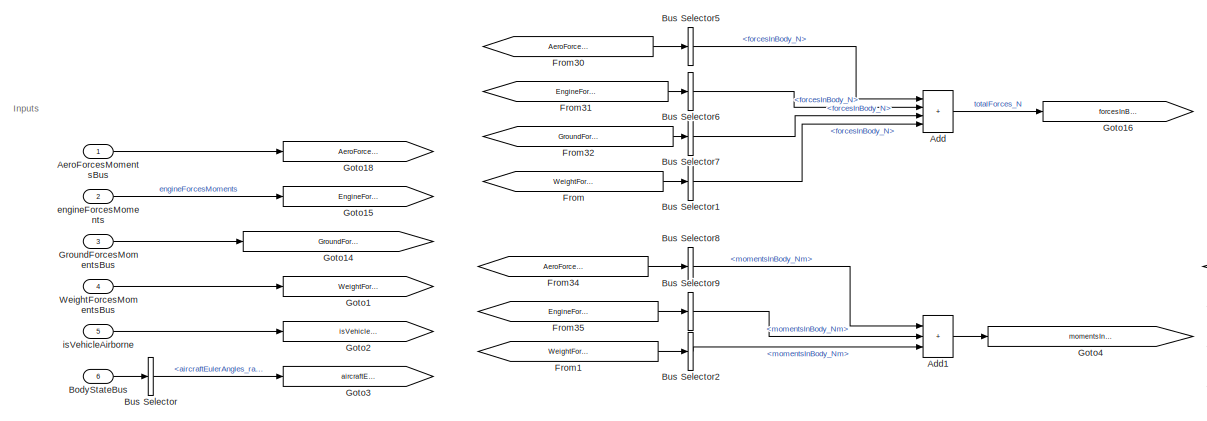
[diagram: root canvas - part 1/2, left side, full height]
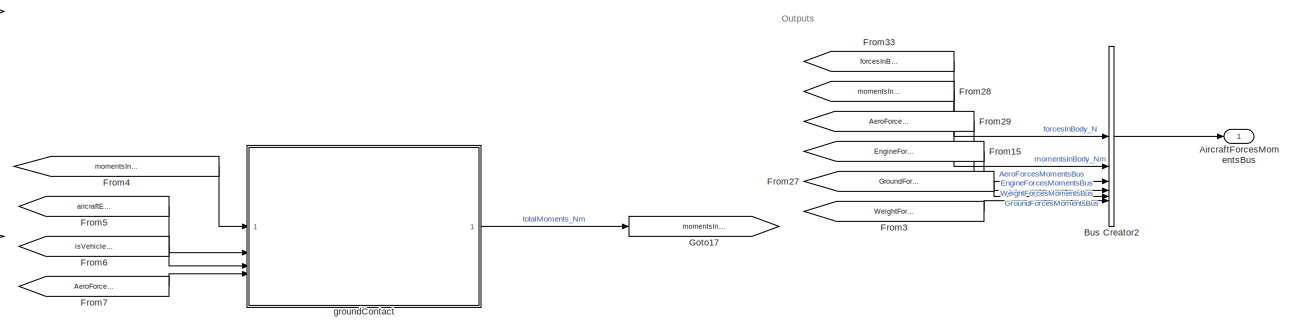
[diagram: root canvas - part 2/2, middle right region]
MODEL slx_ba21f07f6f70
KIND model
BLOCK [Sum] Add
  IconShape = rectangular
  Inputs = ++++
BLOCK [Sum] Add1
  IconShape = rectangular
  Inputs = +++
BLOCK [Inport] AeroForcesMomentsBus
  OutDataTypeStr = Bus: ComponentForcesMomentsBus
  SampleTime = 0
BLOCK [Outport] AircraftForcesMomentsBus
  OutDataTypeStr = Bus: AircraftForcesMomentsBus
  SampleTime = 0
BLOCK [Inport] BodyStateBus
  BusOutputAsStruct = on
  OutDataTypeStr = Bus: BodyStateBus
  Port = 6
  SampleTime = 0
BLOCK [BusCreator] Bus Creator2
  DisplayOption = bar
  InheritFromInputs = on
  Inputs = 6
  OutDataTypeStr = Bus: AircraftForcesMomentsBus
BLOCK [BusSelector] Bus Selector
  OutputSignals = aircraftEulerAngles_rad
BLOCK [BusSelector] Bus Selector1
  OutputSignals = forcesInBody_N
BLOCK [BusSelector] Bus Selector2
  OutputSignals = momentsInBody_Nm
BLOCK [BusSelector] Bus Selector5
  OutputSignals = forcesInBody_N
BLOCK [BusSelector] Bus Selector6
  OutputSignals = forcesInBody_N
BLOCK [BusSelector] Bus Selector7
  OutputSignals = forcesInBody_N
BLOCK [BusSelector] Bus Selector8
  OutputSignals = momentsInBody_Nm
BLOCK [BusSelector] Bus Selector9
  OutputSignals = momentsInBody_Nm
BLOCK [From] From
  GotoTag = WeightForcesMomentsBus
BLOCK [From] From1
  GotoTag = WeightForcesMomentsBus
BLOCK [From] From15
  GotoTag = EngineForcesMomentsBus
BLOCK [From] From27
  GotoTag = GroundForcesMomentsBus
BLOCK [From] From28
  GotoTag = momentsInBody_Nm
BLOCK [From] From29
  GotoTag = AeroForcesMomentsBus
BLOCK [From] From3
  GotoTag = WeightForcesMomentsBus
BLOCK [From] From30
  GotoTag = AeroForcesMomentsBus
BLOCK [From] From31
  GotoTag = EngineForcesMomentsBus
BLOCK [From] From32
  GotoTag = GroundForcesMomentsBus
BLOCK [From] From33
  GotoTag = forcesInBody_N
BLOCK [From] From34
  GotoTag = AeroForcesMomentsBus
BLOCK [From] From35
  GotoTag = EngineForcesMomentsBus
BLOCK [From] From4
  GotoTag = momentsInBodyPreGroundCont_Nm
BLOCK [From] From5
  GotoTag = aircraftEulerAngles_rad
BLOCK [From] From6
  GotoTag = isVehicleAirborne
BLOCK [From] From7
  GotoTag = AeroForcesMomentsBus
BLOCK [Goto] Goto1
  GotoTag = WeightForcesMomentsBus
BLOCK [Goto] Goto14
  GotoTag = GroundForcesMomentsBus
BLOCK [Goto] Goto15
  GotoTag = EngineForcesMomentsBus
BLOCK [Goto] Goto16
  GotoTag = forcesInBody_N
BLOCK [Goto] Goto17
  GotoTag = momentsInBody_Nm
BLOCK [Goto] Goto18
  GotoTag = AeroForcesMomentsBus
BLOCK [Goto] Goto2
  GotoTag = isVehicleAirborne
BLOCK [Goto] Goto3
  GotoTag = aircraftEulerAngles_rad
BLOCK [Goto] Goto4
  GotoTag = momentsInBodyPreGroundCont_Nm
BLOCK [Inport] GroundForcesMomentsBus
  OutDataTypeStr = Bus: ComponentForcesMomentsBus
  Port = 3
  SampleTime = 0
BLOCK [Inport] WeightForcesMomentsBus
  OutDataTypeStr = Bus: ComponentForcesMomentsBus
  Port = 4
  SampleTime = 0
BLOCK [Inport] engineForcesMoments
  OutDataTypeStr = Bus: ComponentForcesMomentsBus
  Port = 2
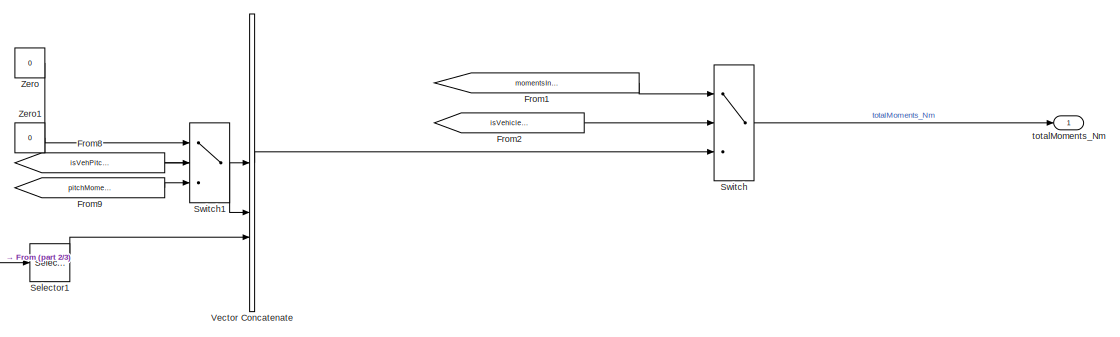
[diagram: groundContact - part 1/3, right side, full height]
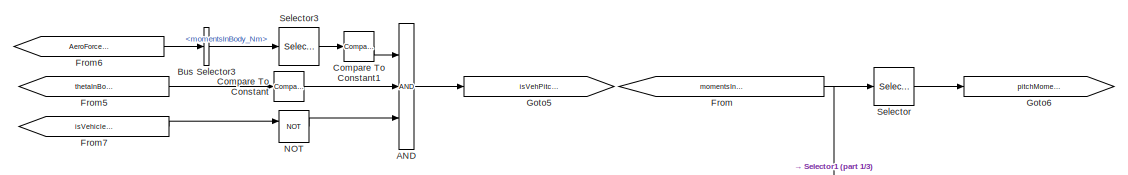
[diagram: groundContact - part 2/3, central region]
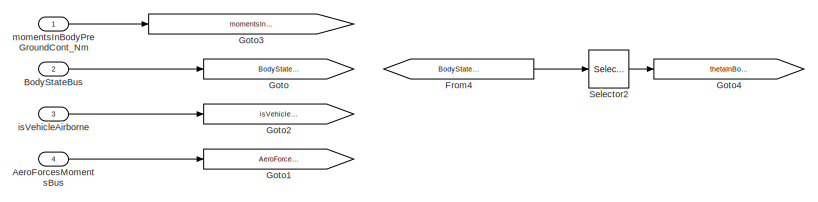
[diagram: groundContact - part 3/3, middle left region]
BLOCK [SubSystem] groundContact
BLOCK [Logic] groundContact/AND
  AllPortsSameDT = off
  Inputs = 3
  OutDataTypeStr = boolean
BLOCK [Inport] groundContact/AeroForcesMomentsBus
  Port = 4
BLOCK [Inport] groundContact/BodyStateBus
  Port = 2
BLOCK [BusSelector] groundContact/Bus Selector3
  OutputSignals = momentsInBody_Nm
BLOCK [Reference] groundContact/Compare To Constant  REF=simulink/Logic and Bit
Operations/Compare
To Constant
  SourceBlock = simulink/Logic and Bit\nOperations/Compare\nTo Constant
  SourceType = Compare To Constant
BLOCK [Reference] groundContact/Compare To Constant1  REF=simulink/Logic and Bit
Operations/Compare
To Constant
  SourceBlock = simulink/Logic and Bit\nOperations/Compare\nTo Constant
  SourceType = Compare To Constant
BLOCK [From] groundContact/From
  GotoTag = momentsInBodyPreGroundCont_Nm
BLOCK [From] groundContact/From1
  GotoTag = momentsInBodyPreGroundCont_Nm
BLOCK [From] groundContact/From2
  GotoTag = isVehicleAirborne
BLOCK [From] groundContact/From4
  GotoTag = BodyStateBus
BLOCK [From] groundContact/From5
  GotoTag = thetaInBody_rad
BLOCK [From] groundContact/From6
  GotoTag = AeroForcesMomentsBus
BLOCK [From] groundContact/From7
  GotoTag = isVehicleAirborne
BLOCK [From] groundContact/From8
  GotoTag = isVehPitchIntoGround
BLOCK [From] groundContact/From9
  GotoTag = pitchMomentInBody_Nm
BLOCK [Goto] groundContact/Goto
  GotoTag = BodyStateBus
BLOCK [Goto] groundContact/Goto1
  GotoTag = AeroForcesMomentsBus
BLOCK [Goto] groundContact/Goto2
  GotoTag = isVehicleAirborne
BLOCK [Goto] groundContact/Goto3
  GotoTag = momentsInBodyPreGroundCont_Nm
BLOCK [Goto] groundContact/Goto4
  GotoTag = thetaInBody_rad
BLOCK [Goto] groundContact/Goto5
  GotoTag = isVehPitchIntoGround
BLOCK [Goto] groundContact/Goto6
  GotoTag = pitchMomentInBody_Nm
BLOCK [Logic] groundContact/NOT
  AllPortsSameDT = off
  IconShape = distinctive
  Operator = NOT
  OutDataTypeStr = boolean
BLOCK [Selector] groundContact/Selector
  IndexOptions = Index vector (dialog)
  Indices = 2
  InputPortWidth = 3
  OutputSizes = 1
BLOCK [Selector] groundContact/Selector1
  IndexOptions = Index vector (dialog)
  Indices = 3
  InputPortWidth = 3
  OutputSizes = 1
BLOCK [Selector] groundContact/Selector2
  IndexOptions = Index vector (dialog)
  Indices = 2
  InputPortWidth = 3
  OutputSizes = 1
BLOCK [Selector] groundContact/Selector3
  IndexOptions = Index vector (dialog)
  Indices = 2
  InputPortWidth = 3
  OutputSizes = 1
BLOCK [Switch] groundContact/Switch
  Criteria = u2 > Threshold
  InputSameDT = off
  SaturateOnIntegerOverflow = off
BLOCK [Switch] groundContact/Switch1
  Criteria = u2 > Threshold
  InputSameDT = off
  SaturateOnIntegerOverflow = off
BLOCK [Concatenate] groundContact/Vector Concatenate
  NumInputs = 3
BLOCK [Constant] groundContact/Zero
  OutDataTypeStr = Inherit: Inherit via back propagation
  Value = 0
BLOCK [Constant] groundContact/Zero1
  OutDataTypeStr = Inherit: Inherit via back propagation
  Value = 0
BLOCK [Inport] groundContact/isVehicleAirborne
  Port = 3
BLOCK [Inport] groundContact/momentsInBodyPreGroundCont_Nm
BLOCK [Outport] groundContact/totalMoments_Nm
BLOCK [Inport] isVehicleAirborne
  OutDataTypeStr = boolean
  Port = 5
ANNOTATION (root): Inputs
ANNOTATION (root): Outputs
LINE Add1:1 -> Goto4:1
LINE Add:1 -> Goto16:1
LINE AeroForcesMomentsBus:1 -> Goto18:1
LINE BodyStateBus:1 -> Bus Selector:1
LINE Bus Creator2:1 -> AircraftForcesMomentsBus:1
LINE Bus Selector1:1 -> Add:4
LINE Bus Selector2:1 -> Add1:3
LINE Bus Selector5:1 -> Add:1
LINE Bus Selector6:1 -> Add:2
LINE Bus Selector7:1 -> Add:3
LINE Bus Selector8:1 -> Add1:1
LINE Bus Selector9:1 -> Add1:2
LINE Bus Selector:1 -> Goto3:1
LINE From15:1 -> Bus Creator2:4
LINE From1:1 -> Bus Selector2:1
LINE From27:1 -> Bus Creator2:5
LINE From28:1 -> Bus Creator2:2
LINE From29:1 -> Bus Creator2:3
LINE From30:1 -> Bus Selector5:1
LINE From31:1 -> Bus Selector6:1
LINE From32:1 -> Bus Selector7:1
LINE From33:1 -> Bus Creator2:1
LINE From34:1 -> Bus Selector8:1
LINE From35:1 -> Bus Selector9:1
LINE From3:1 -> Bus Creator2:6
LINE From4:1 -> groundContact:1
LINE From5:1 -> groundContact:2
LINE From6:1 -> groundContact:3
LINE From7:1 -> groundContact:4
LINE From:1 -> Bus Selector1:1
LINE GroundForcesMomentsBus:1 -> Goto14:1
LINE WeightForcesMomentsBus:1 -> Goto1:1
LINE engineForcesMoments:1 -> Goto15:1
LINE groundContact/AND:1 -> groundContact/Goto5:1
LINE groundContact/AeroForcesMomentsBus:1 -> groundContact/Goto1:1
LINE groundContact/BodyStateBus:1 -> groundContact/Goto:1
LINE groundContact/Bus Selector3:1 -> groundContact/Selector3:1
LINE groundContact/Compare To Constant1:1 -> groundContact/AND:1
LINE groundContact/Compare To Constant:1 -> groundContact/AND:2
LINE groundContact/From1:1 -> groundContact/Switch:1
LINE groundContact/From2:1 -> groundContact/Switch:2
LINE groundContact/From4:1 -> groundContact/Selector2:1
LINE groundContact/From5:1 -> groundContact/Compare To Constant:1
LINE groundContact/From6:1 -> groundContact/Bus Selector3:1
LINE groundContact/From7:1 -> groundContact/NOT:1
LINE groundContact/From8:1 -> groundContact/Switch1:2
LINE groundContact/From9:1 -> groundContact/Switch1:3
NET groundContact/From:1 -> groundContact/Selector1:1, groundContact/Selector:1
LINE groundContact/NOT:1 -> groundContact/AND:3
LINE groundContact/Selector1:1 -> groundContact/Vector Concatenate:3
LINE groundContact/Selector2:1 -> groundContact/Goto4:1
LINE groundContact/Selector3:1 -> groundContact/Compare To Constant1:1
LINE groundContact/Selector:1 -> groundContact/Goto6:1
LINE groundContact/Switch1:1 -> groundContact/Vector Concatenate:2
LINE groundContact/Switch:1 -> groundContact/totalMoments_Nm:1
LINE groundContact/Vector Concatenate:1 -> groundContact/Switch:3
LINE groundContact/Zero1:1 -> groundContact/Switch1:1
LINE groundContact/Zero:1 -> groundContact/Vector Concatenate:1
LINE groundContact/isVehicleAirborne:1 -> groundContact/Goto2:1
LINE groundContact/momentsInBodyPreGroundCont_Nm:1 -> groundContact/Goto3:1
LINE groundContact:1 -> Goto17:1
LINE isVehicleAirborne:1 -> Goto2:1
note: NET lines group one-source signal fan-out (src -> all destinations, sorted); 1:1 wires keep LINE
